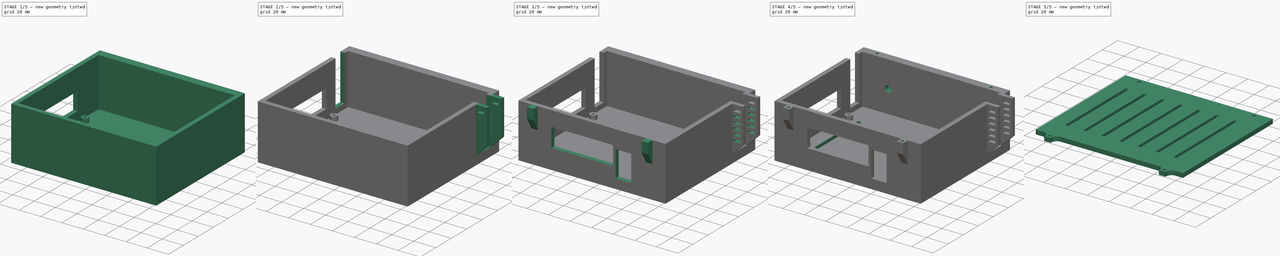
[diagram: build sequence overview — one tinted view per stage of 5, left to right]
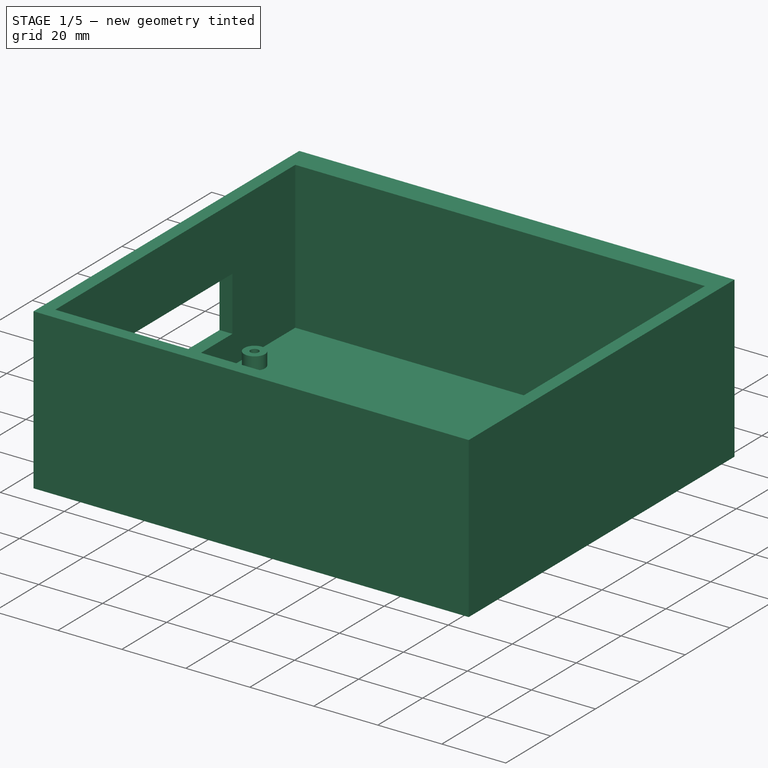
[diagram: stage 1 of 5 — iso view after this stage's code; geometry added in this stage tinted green]
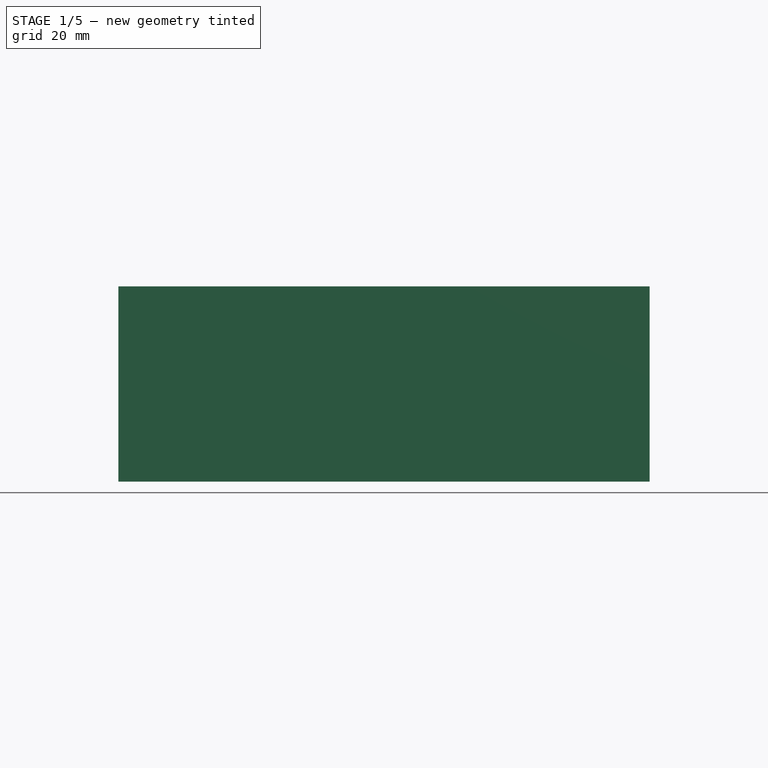
[diagram: stage 1 of 5 — front view after this stage's code; geometry added in this stage tinted green]
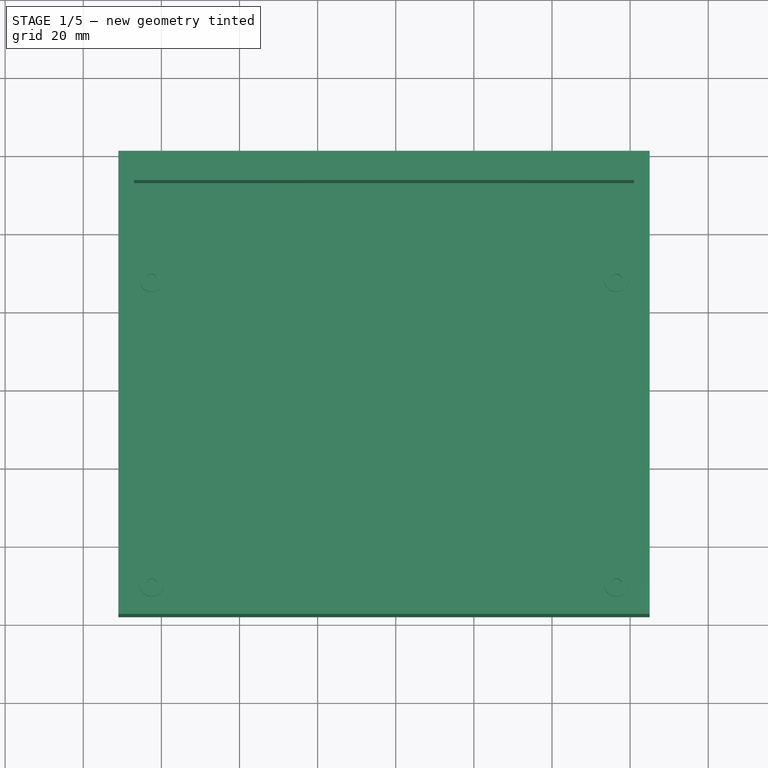
[diagram: stage 1 of 5 — top view after this stage's code; geometry added in this stage tinted green]
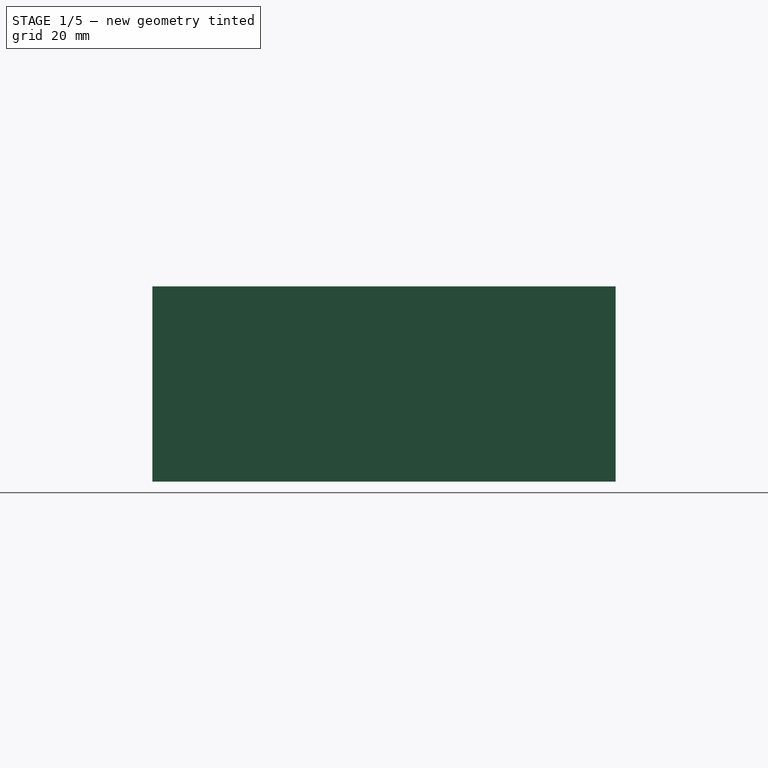
[diagram: stage 1 of 5 — right view after this stage's code; geometry added in this stage tinted green]
FCSTD DOCUMENT  (FreeCAD 0.19R)
Label: second_box
License: All rights reserved
LicenseURL: http://en.wikipedia.org/wiki/All_rights_reserved
objects: Part::Feature×43, Sketcher::SketchObject×17, App::Part×11, PartDesign::Pocket×11, PartDesign::Pad×6, PartDesign::ShapeBinder×3, PartDesign::LinearPattern×3, PartDesign::Chamfer×2, PartDesign::Body×2, PartDesign::Draft×1, PartDesign::Fillet×1
note: 110 computed .brp shape members not serialized (recipe doc carries the construction recipe); baked Part::Feature solids carry a one-line shape summary decoded from their .brp

FEATURE [PartDesign::ShapeBinder] ShapeBinder
  Placement = pos=(0,0,-0.864479) rot=(0,0,1;0rad)
  TraceSupport = false
FEATURE [Part::Feature] Part__Feature783  label="J182"
  shape: bbox 9.1 x 71.4 x 12.4 mm, 745 faces, 51 solids (baked)
FEATURE [Part::Feature] Part__Feature782  label="M5 V1.0 Geometry"
  shape: bbox 127 x 86 x 0.8645 mm, 14 faces (baked)
FEATURE [Part::Feature] Part__Feature784  label="M12"
  shape: bbox 20.34 x 27.91 x 11.54 mm, 787 faces, 79 solids (baked)
FEATURE [Part::Feature] Part__Feature791  label="POWER IN"
  shape: bbox 12.46 x 12.29 x 20.3 mm, 192 faces, 8 solids (baked)
FEATURE [Part::Feature] Part__Feature790  label="FANs"
  shape: bbox 6 x 41.6 x 11 mm, 250 faces, 25 solids (baked)
FEATURE [Part::Feature] Part__Feature786  label="M32"
  shape: bbox 20.34 x 27.91 x 11.54 mm, 787 faces, 79 solids (baked)
FEATURE [Part::Feature] Part__Feature785  label="M22"
  shape: bbox 20.34 x 27.91 x 11.54 mm, 787 faces, 79 solids (baked)
FEATURE [Part::Feature] Part__Feature787  label="M42"
  shape: bbox 20.34 x 27.91 x 11.54 mm, 787 faces, 79 solids (baked)
FEATURE [Part::Feature] Part__Feature794  label="FAN VIN"
  shape: bbox 7.62 x 2.54 x 11.54 mm, 48 faces, 6 solids (baked)
FEATURE [Part::Feature] Part__Feature788  label="M52"
  shape: bbox 20.34 x 27.91 x 11.54 mm, 787 faces, 79 solids (baked)
FEATURE [Part::Feature] Part__Feature792  label="TEMPs"
  shape: bbox 8 x 31.68 x 11 mm, 250 faces, 25 solids (baked)
FEATURE [Part::Feature] Part__Feature789  label="M_STOP"
  shape: bbox 74.94 x 5.842 x 11.54 mm, 420 faces, 60 solids (baked)
FEATURE [Part::Feature] Part__Feature793  label="NeoPixel"
  shape: bbox 7.62 x 2.54 x 11.54 mm, 48 faces, 6 solids (baked)
FEATURE [Part::Feature] Part__Feature795  label="HEAT"
  shape: bbox 55.6 x 24.66 x 21.5 mm, 3313 faces, 16 solids (baked)
FEATURE [Part::Feature] Part__Feature809  label="Component035"
  shape: bbox 7.783 x 0.9 x 5.903 mm, 6 faces (baked)
FEATURE [Part::Feature] Part__Feature797  label="Extruded-358"
  shape: bbox 2.41 x 5.02 x 4 mm, 6 faces (baked)
FEATURE [Part::Feature] Part__Feature799  label="User_Library-MINI_BUSSMAN_FUSE4"
  Placement = pos=(22.467,76.0414,8.5) rot=(0.57735,-0.57735,-0.57735;2.0944rad)
  shape: bbox 4.074 x 11.13 x 16.64 mm, 282 faces, 3 solids (baked)
FEATURE [Part::Feature] Part__Feature805  label="Component031"
  shape: bbox 20.6 x 1.6 x 15.7 mm, 12 faces (baked)
FEATURE [Part::Feature] Part__Feature796  label="Extruded-357"
  shape: bbox 5 x 15 x 3 mm, 6 faces (baked)
FEATURE [Part::Feature] Part__Feature798  label="Extruded-359"
  shape: bbox 2.41 x 5.02 x 4 mm, 6 faces (baked)
FEATURE [Part::Feature] Part__Feature820  label="Component046"
  shape: bbox 20.6 x 1.6 x 15.7 mm, 12 faces (baked)
FEATURE [App::Part] _070069282001  label="9070069282001"
  Group = -> [Part__Feature798]
  Origin = -> Origin827
  Placement = pos=(22.472,66.591,3) rot=(0,0,1;0rad)
FEATURE [Part::Feature] Part__Feature802  label="Component32"
  shape: bbox 18.38 x 11.7 x 13.3 mm, 208 faces, 16 solids (baked)
FEATURE [Part::Feature] Part__Feature823  label="Component049"
  shape: bbox 9 x 12 x 9 mm, 90 faces (baked)
FEATURE [Part::Feature] Part__Feature817  label="Component043"
  shape: bbox 18.38 x 11.7 x 13.3 mm, 208 faces, 16 solids (baked)
FEATURE [Part::Feature] Part__Feature803  label="Component42"
  shape: bbox 9 x 12 x 9 mm, 90 faces (baked)
FEATURE [Part::Feature] Part__Feature800  label="Component12"
  shape: bbox 20.6 x 1.6 x 15.7 mm, 12 faces (baked)
FEATURE [Part::Feature] Part__Feature811  label="Component037"
  shape: bbox 20.32 x 2.7 x 15.2 mm, 168 faces, 2 solids (baked)
FEATURE [Part::Feature] Part__Feature816  label="Component042"
  shape: bbox 20.32 x 2.7 x 15.2 mm, 168 faces, 2 solids (baked)
FEATURE [Part::Feature] Part__Feature806  label="Component032"
  shape: bbox 20.32 x 2.7 x 15.2 mm, 168 faces, 2 solids (baked)
FEATURE [Part::Feature] Part__Feature814  label="Component040"
  shape: bbox 7.783 x 0.9 x 5.903 mm, 6 faces (baked)
FEATURE [Part::Feature] Part__Feature807  label="Component033"
  shape: bbox 18.38 x 11.7 x 13.3 mm, 208 faces, 16 solids (baked)
FEATURE [Part::Feature] Part__Feature801  label="Component22"
  shape: bbox 20.32 x 2.7 x 15.2 mm, 168 faces, 2 solids (baked)
FEATURE [Part::Feature] Part__Feature810  label="Component036"
  shape: bbox 20.6 x 1.6 x 15.7 mm, 12 faces (baked)
FEATURE [Part::Feature] Part__Feature804  label="Component52"
  shape: bbox 7.783 x 0.9 x 5.903 mm, 6 faces (baked)
FEATURE [Part::Feature] Part__Feature822  label="Component048"
  shape: bbox 18.38 x 11.7 x 13.3 mm, 208 faces, 16 solids (baked)
FEATURE [Part::Feature] Part__Feature818  label="Component044"
  shape: bbox 9 x 12 x 9 mm, 90 faces (baked)
FEATURE [Part::Feature] Part__Feature812  label="Component038"
  shape: bbox 18.38 x 11.7 x 13.3 mm, 208 faces, 16 solids (baked)
FEATURE [Part::Feature] Part__Feature815  label="Component041"
  shape: bbox 20.6 x 1.6 x 15.7 mm, 12 faces (baked)
FEATURE [Part::Feature] Part__Feature813  label="Component039"
  shape: bbox 9 x 12 x 9 mm, 90 faces (baked)
FEATURE [App::Part] TMC_22082002  label="TMC 22084"
  Group = -> [Part__Feature810,Part__Feature811,Part__Feature812,Part__Feature813,Part__Feature814]
  Origin = -> Origin832
  Placement = pos=(268.514,85.156,11.2) rot=(0,0.707107,0.707107;3.14159rad)
FEATURE [Part::Feature] Part__Feature821  label="Component047"
  shape: bbox 20.32 x 2.7 x 15.2 mm, 168 faces, 2 solids (baked)
FEATURE [Part::Feature] Part__Feature808  label="Component034"
  shape: bbox 9 x 12 x 9 mm, 90 faces (baked)
FEATURE [App::Part] TMC_22082001  label="TMC 22083"
  Group = -> [Part__Feature805,Part__Feature806,Part__Feature807,Part__Feature808,Part__Feature809]
  Origin = -> Origin831
  Placement = pos=(247.014,85.156,11.2) rot=(0,0.707107,0.707107;3.14159rad)
FEATURE [App::Part] _070110242  label="9070110242"
  Group = -> [Part__Feature796]
  Origin = -> Origin825
  Placement = pos=(22.467,70.581,0) rot=(0,0,1;0rad)
FEATURE [App::Part] TMC_22082  label="TMC 22082"
  Group = -> [Part__Feature800,Part__Feature801,Part__Feature802,Part__Feature803,Part__Feature804]
  Origin = -> Origin830
  Placement = pos=(225.514,85.156,11.2) rot=(0,0.707107,0.707107;3.14159rad)
FEATURE [Part::Feature] Part__Feature819  label="Component045"
  shape: bbox 7.783 x 0.9 x 5.903 mm, 6 faces (baked)
FEATURE [App::Part] TMC_22082003  label="TMC 22085"
  Group = -> [Part__Feature815,Part__Feature816,Part__Feature817,Part__Feature818,Part__Feature819]
  Origin = -> Origin833
  Placement = pos=(290.014,85.156,11.2) rot=(0,0.707107,0.707107;3.14159rad)
FEATURE [App::Part] _070069282  label="9070069282"
  Group = -> [Part__Feature797]
  Origin = -> Origin826
  Placement = pos=(22.472,74.591,3) rot=(0,0,1;0rad)
FEATURE [App::Part] F12
  Group = -> [_070110242,_070069282,_070069282001,Part__Feature799]
  Origin = -> Origin828
  Placement = pos=(273.98,-53.61,0) rot=(0,0,1;0rad)
FEATURE [App::Part] M5_V1_0  label="M5 V1.0"
  Group = -> [Part__Feature782,Part__Feature783,Part__Feature784,Part__Feature785,Part__Feature786,Part__Feature787,Part__Feature788,Part__Feature789,Part__Feature790,Part__Feature791,Part__Feature792,Part__Feature793,Part__Feature794,Part__Feature795,F12]
  Origin = -> Origin829
FEATURE [Part::Feature] Part__Feature824  label="Component050"
  shape: bbox 7.783 x 0.9 x 5.903 mm, 6 faces (baked)
FEATURE [App::Part] TMC_22082004  label="TMC 22086"
  Group = -> [Part__Feature820,Part__Feature821,Part__Feature822,Part__Feature823,Part__Feature824]
  Origin = -> Origin834
  Placement = pos=(311.514,85.156,11.2) rot=(0,0.707107,0.707107;3.14159rad)
FEATURE [App::Part] M5_V1_02  label="M5 V1.02"
  Group = -> [M5_V1_0,TMC_22082,TMC_22082001,TMC_22082002,TMC_22082003,TMC_22082004]
  Origin = -> Origin835
FEATURE [PartDesign::ShapeBinder] ShapeBinder001
  Support = -> [Part__Feature782]
  TraceSupport = false
FEATURE [Sketcher::SketchObject] Sketch
  AttachmentOffset = pos=(0,0,8) rot=(0,0,1;0rad)
  ExternalGeometry = -> [ShapeBinder,ShapeBinder001]
  FullyConstrained = false
  MapMode = 5
  Placement = pos=(0,0,-8.86448) rot=(1,0,0;3.14159rad)
  Support = -> [ShapeBinder]
  sketch-geometry (4):
    g0: LineSegment StartX=189 StartY=-2 StartZ=0 EndX=325 EndY=-2 EndZ=0
    g1: LineSegment StartX=325 StartY=-2 StartZ=0 EndX=325 EndY=-120.6 EndZ=0
    g2: LineSegment StartX=325 StartY=-120.6 StartZ=0 EndX=189 EndY=-120.6 EndZ=0
    g3: LineSegment StartX=189 StartY=-120.6 StartZ=0 EndX=189 EndY=-2 EndZ=0
  constraints (12):
    c: Coincident(g0,g1)
    c: Coincident(g1,g2)
    c: Coincident(g2,g3)
    c: Coincident(g3,g0)
    c: Horizontal(g0)
    c: Horizontal(g2)
    c: Vertical(g1)
    c: Vertical(g3)
    c: DistanceY(g1,g1) = 118.6
    c: Distance(g-6,g3) = 4.5
    c: Distance(g-6,g0) = 4.5
    c: Distance(g-8,g1) = 4.5
FEATURE [PartDesign::Pad] Pad
  Direction = (1,1,1)
  Length = 50
  Length2 = 100
  Placement = pos=(0,0,-0.864479) rot=(0,0,1;0rad)
  Profile = -> Sketch
  Reversed = true
  Type = 0
FEATURE [Sketcher::SketchObject] Sketch001
  ExternalGeometry = -> [Pad]
  FullyConstrained = false
  MapMode = 5
  Placement = pos=(0,0,41.1355) rot=(0,0,1;0rad)
  Support = -> [Pad]
  sketch-geometry (4):
    g0: LineSegment StartX=193 StartY=113.1 StartZ=0 EndX=321 EndY=113.1 EndZ=0
    g1: LineSegment StartX=321 StartY=113.1 StartZ=0 EndX=321 EndY=6 EndZ=0
    g2: LineSegment StartX=321 StartY=6 StartZ=0 EndX=193 EndY=6 EndZ=0
    g3: LineSegment StartX=193 StartY=6 StartZ=0 EndX=193 EndY=113.1 EndZ=0
  constraints (12):
    c: Coincident(g0,g1)
    c: Coincident(g1,g2)
    c: Coincident(g3,g0)
    c: Horizontal(g0)
    c: Horizontal(g2)
    c: Vertical(g1)
    c: Vertical(g3)
    c: Distance(g0,g-5) = 7.5
    c: Coincident(g3,g2)
    c: Distance(g0,g-3) = 4
    c: Distance(g0,g-4) = 4
    c: Distance(g2,g-6) = 4
FEATURE [PartDesign::Pocket] Pocket
  BaseFeature = -> Pad
  Length = 46
  Length2 = 100
  Placement = pos=(0,0,-0.864479) rot=(0,0,1;0rad)
  Profile = -> Sketch001
  Type = 0
FEATURE [Sketcher::SketchObject] Sketch010
  ExternalGeometry = -> [ShapeBinder001]
  FullyConstrained = false
  MapMode = 5
  Placement = pos=(0,0,-4.86448) rot=(0,0,1;0rad)
  Support = -> [Pocket]
  sketch-geometry (4):
    g0: Circle CenterX=197.5 CenterY=88.5 CenterZ=0 NormalX=0 NormalY=0 NormalZ=1 AngleXU=0 Radius=3.25
    g1: Circle CenterX=316.5 CenterY=88.5 CenterZ=0 NormalX=0 NormalY=0 NormalZ=1 AngleXU=0 Radius=3.25
    g2: Circle CenterX=197.5 CenterY=10.5 CenterZ=0 NormalX=0 NormalY=0 NormalZ=1 AngleXU=0 Radius=3.25
    g3: Circle CenterX=316.5 CenterY=10.5 CenterZ=0 NormalX=0 NormalY=0 NormalZ=1 AngleXU=0 Radius=3.25
  constraints (8):
    c: Coincident(g0,g-3)
    c: Coincident(g1,g-4)
    c: Coincident(g2,g-6)
    c: Coincident(g3,g-5)
    c: Radius(g3) = 3.25
    c: Equal(g3,g2)
    c: Equal(g3,g0)
    c: Equal(g3,g1)
FEATURE [PartDesign::Pad] Pad001
  BaseFeature = -> Pocket
  Direction = (1,1,1)
  Length = 4
  Length2 = 100
  Placement = pos=(0,0,-0.864479) rot=(0,0,1;0rad)
  Profile = -> Sketch010
  Type = 0
FEATURE [Sketcher::SketchObject] Sketch011
  ExternalGeometry = -> [Pad001]
  FullyConstrained = false
  MapMode = 5
  Placement = pos=(0,0,-0.864479) rot=(0,0,1;0rad)
  Support = -> [Pad001]
  sketch-geometry (4):
    g0: Circle CenterX=197.5 CenterY=88.5 CenterZ=0 NormalX=0 NormalY=0 NormalZ=1 AngleXU=0 Radius=1.3
    g1: Circle CenterX=316.5 CenterY=88.5 CenterZ=0 NormalX=0 NormalY=0 NormalZ=1 AngleXU=0 Radius=1.3
    g2: Circle CenterX=197.5 CenterY=10.5 CenterZ=0 NormalX=0 NormalY=0 NormalZ=1 AngleXU=0 Radius=1.3
    g3: Circle CenterX=316.5 CenterY=10.5 CenterZ=0 NormalX=0 NormalY=0 NormalZ=1 AngleXU=0 Radius=1.3
  constraints (8):
    c: Coincident(g0,g-3)
    c: Coincident(g1,g-4)
    c: Coincident(g2,g-5)
    c: Coincident(g3,g-6)
    c: Radius(g0) = 1.3
    c: Equal(g0,g1)
    c: Equal(g0,g2)
    c: Equal(g0,g3)
FEATURE [PartDesign::Pocket] Pocket001
  BaseFeature = -> Pad001
  Length = 6
  Length2 = 100
  Placement = pos=(0,0,-0.864479) rot=(0,0,1;0rad)
  Profile = -> Sketch011
  Type = 0
FEATURE [Sketcher::SketchObject] Sketch012
  FullyConstrained = false
  MapMode = 5
  Placement = pos=(193,0,-0.864479) rot=(0.57735,0.57735,0.57735;2.0944rad)
  Support = -> [Pocket001]
  sketch-geometry (4):
    g0: LineSegment StartX=12.7095 StartY=21.9569 StartZ=0 EndX=85.0202 EndY=21.9569 EndZ=0
    g1: LineSegment StartX=85.0202 StartY=21.9569 StartZ=0 EndX=85.0202 EndY=4.98651 EndZ=0
    g2: LineSegment StartX=85.0202 StartY=4.98651 StartZ=0 EndX=12.7095 EndY=4.98651 EndZ=0
    g3: LineSegment StartX=12.7095 StartY=4.98651 StartZ=0 EndX=12.7095 EndY=21.9569 EndZ=0
  constraints (8):
    c: Coincident(g0,g1)
    c: Coincident(g1,g2)
    c: Coincident(g2,g3)
    c: Coincident(g3,g0)
    c: Horizontal(g0)
    c: Horizontal(g2)
    c: Vertical(g1)
    c: Vertical(g3)
FEATURE [PartDesign::Pocket] Pocket002
  BaseFeature = -> Pocket001
  Length = 5
  Length2 = 100
  Placement = pos=(0,0,-0.864479) rot=(0,0,1;0rad)
  Profile = -> Sketch012
  Type = 0
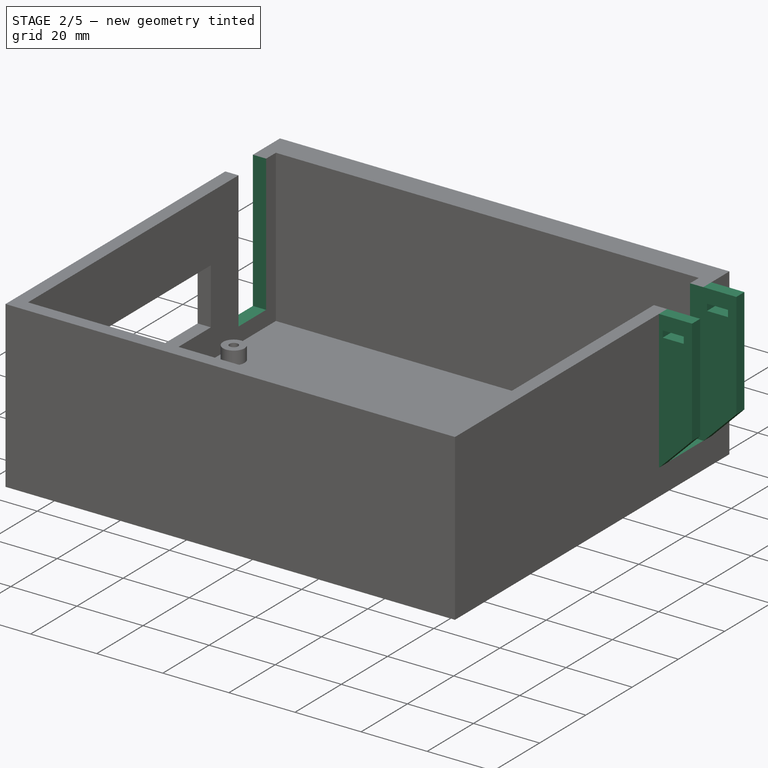
[diagram: stage 2 of 5 — iso view after this stage's code; geometry added in this stage tinted green]
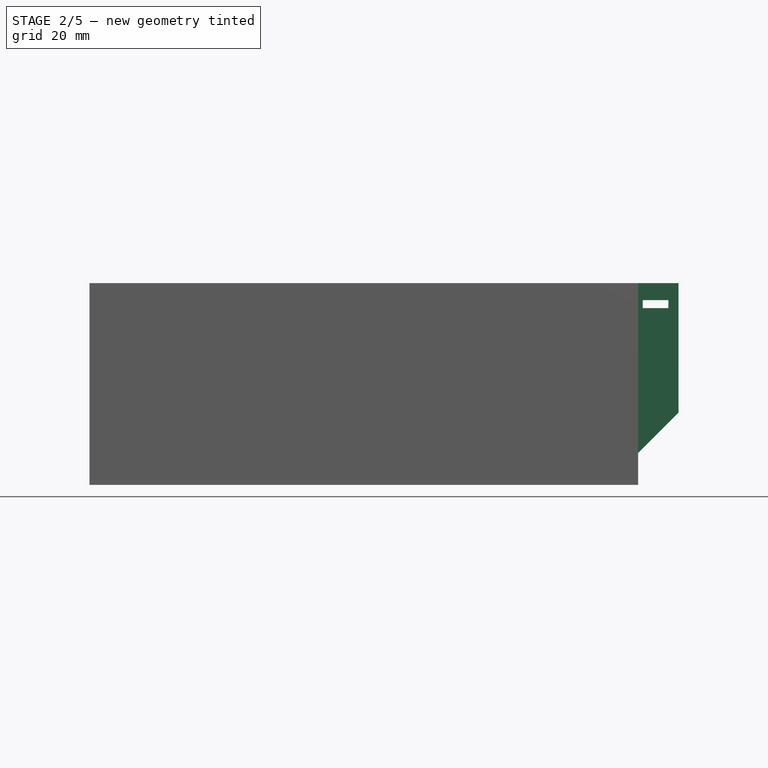
[diagram: stage 2 of 5 — front view after this stage's code; geometry added in this stage tinted green]
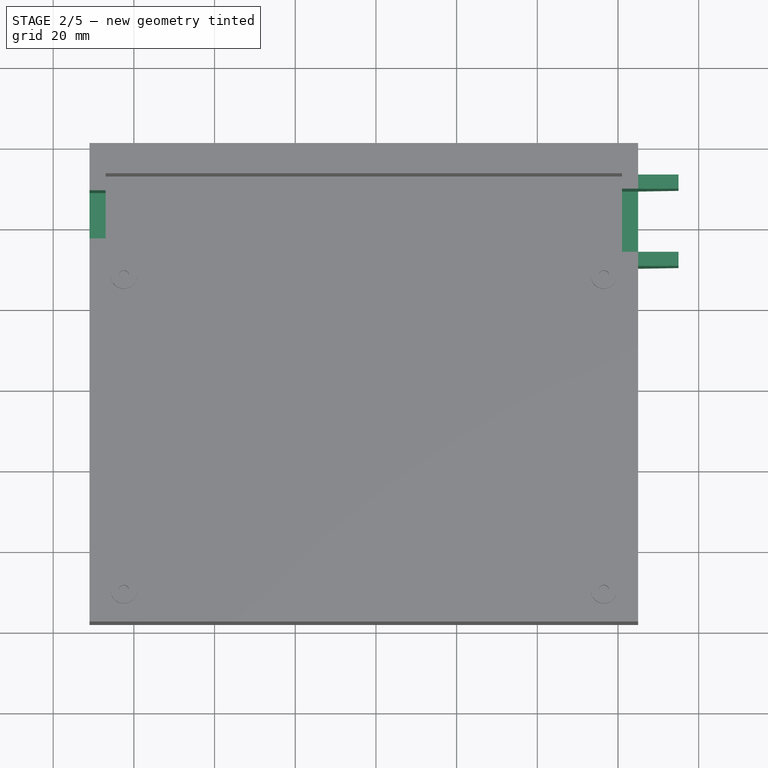
[diagram: stage 2 of 5 — top view after this stage's code; geometry added in this stage tinted green]
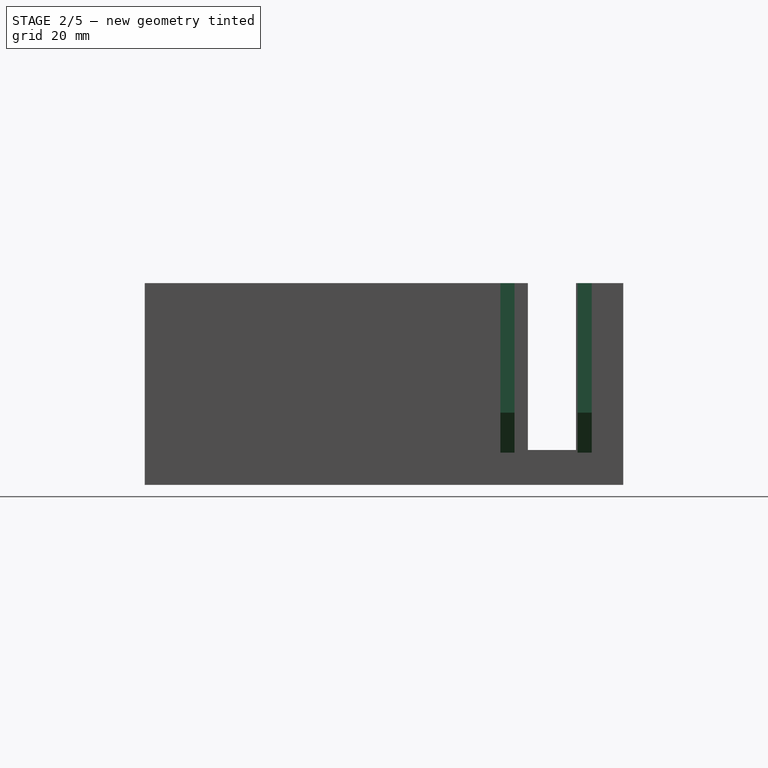
[diagram: stage 2 of 5 — right view after this stage's code; geometry added in this stage tinted green]
FEATURE [Sketcher::SketchObject] Sketch013
  ExternalGeometry = -> [Pocket002]
  FullyConstrained = false
  MapMode = 5
  Placement = pos=(193,0,-0.864479) rot=(0.57735,0.57735,0.57735;2.0944rad)
  Support = -> [Pocket002]
  sketch-geometry (4):
    g0: LineSegment StartX=96.9538 StartY=42 StartZ=0 EndX=108.898 EndY=42 EndZ=0
    g1: LineSegment StartX=108.898 StartY=42 StartZ=0 EndX=108.898 EndY=0.6398 EndZ=0
    g2: LineSegment StartX=108.898 StartY=0.6398 StartZ=0 EndX=96.9538 EndY=0.6398 EndZ=0
    g3: LineSegment StartX=96.9538 StartY=0.6398 StartZ=0 EndX=96.9538 EndY=42 EndZ=0
  constraints (9):
    c: Coincident(g0,g1)
    c: Coincident(g1,g2)
    c: Coincident(g2,g3)
    c: Coincident(g3,g0)
    c: Horizontal(g0)
    c: Horizontal(g2)
    c: Vertical(g1)
    c: Vertical(g3)
    c: PointOnObject(g0,g-3)
FEATURE [PartDesign::Pocket] Pocket003
  BaseFeature = -> Pocket002
  Length = 5
  Length2 = 100
  Placement = pos=(0,0,-0.864479) rot=(0,0,1;0rad)
  Profile = -> Sketch013
  Type = 0
FEATURE [Sketcher::SketchObject] Sketch014
  ExternalGeometry = -> [Pocket003]
  FullyConstrained = false
  MapMode = 5
  Placement = pos=(321,0,-0.864479) rot=(0.57735,-0.57735,-0.57735;2.0944rad)
  Support = -> [Pocket003]
  sketch-geometry (4):
    g0: LineSegment StartX=-109.301 StartY=42 StartZ=0 EndX=-93.6581 EndY=42 EndZ=0
    g1: LineSegment StartX=-93.6581 StartY=42 StartZ=0 EndX=-93.6581 EndY=0 EndZ=0
    g2: LineSegment StartX=-93.6581 StartY=0 StartZ=0 EndX=-109.301 EndY=0 EndZ=0
    g3: LineSegment StartX=-109.301 StartY=0 StartZ=0 EndX=-109.301 EndY=42 EndZ=0
  constraints (10):
    c: Coincident(g0,g1)
    c: Coincident(g1,g2)
    c: Coincident(g2,g3)
    c: Coincident(g3,g0)
    c: Horizontal(g0)
    c: Horizontal(g2)
    c: Vertical(g1)
    c: Vertical(g3)
    c: PointOnObject(g0,g-3)
    c: PointOnObject(g1,g-1)
FEATURE [PartDesign::Pocket] Pocket004
  BaseFeature = -> Pocket003
  Length = 5
  Length2 = 100
  Placement = pos=(0,0,-0.864479) rot=(0,0,1;0rad)
  Profile = -> Sketch014
  Type = 0
FEATURE [Sketcher::SketchObject] Sketch015
  ExternalGeometry = -> [Pocket004]
  FullyConstrained = false
  MapMode = 5
  Placement = pos=(325,0,-0.864479) rot=(0.57735,0.57735,0.57735;2.0944rad)
  Support = -> [Pocket004]
  sketch-geometry (8):
    g0: LineSegment StartX=93.6581 StartY=42 StartZ=0 EndX=90.1581 EndY=42 EndZ=0
    g1: LineSegment StartX=90.1581 StartY=42 StartZ=0 EndX=90.1581 EndY=0 EndZ=0
    g2: LineSegment StartX=90.1581 StartY=0 StartZ=0 EndX=93.6581 EndY=0 EndZ=0
    g3: LineSegment StartX=93.6581 StartY=0 StartZ=0 EndX=93.6581 EndY=42 EndZ=0
    g4: LineSegment StartX=109.301 StartY=42 StartZ=0 EndX=112.801 EndY=42 EndZ=0
    g5: LineSegment StartX=112.801 StartY=42 StartZ=0 EndX=112.801 EndY=0 EndZ=0
    g6: LineSegment StartX=112.801 StartY=0 StartZ=0 EndX=109.301 EndY=0 EndZ=0
    g7: LineSegment StartX=109.301 StartY=0 StartZ=0 EndX=109.301 EndY=42 EndZ=0
  constraints (22):
    c: Coincident(g0,g1)
    c: Coincident(g1,g2)
    c: Coincident(g2,g3)
    c: Coincident(g3,g0)
    c: Horizontal(g0)
    c: Horizontal(g2)
    c: Vertical(g1)
    c: Vertical(g3)
    c: Coincident(g0,g-3)
    c: Coincident(g4,g5)
    c: Coincident(g5,g6)
    c: Coincident(g6,g7)
    c: Coincident(g7,g4)
    c: Horizontal(g4)
    c: Horizontal(g6)
    c: Vertical(g5)
    c: Vertical(g7)
    c: Coincident(g4,g-4)
    c: PointOnObject(g2,g-5)
    c: PointOnObject(g6,g-5)
    c: Equal(g2,g6)
    c: DistanceX(g4,g4) = 3.5
FEATURE [PartDesign::Pad] Pad002
  BaseFeature = -> Pocket004
  Direction = (1,1,1)
  Length = 10
  Length2 = 100
  Placement = pos=(0,0,-0.864479) rot=(0,0,1;0rad)
  Profile = -> Sketch015
  Type = 0
FEATURE [PartDesign::Chamfer] Chamfer
  Angle = 45
  Base = -> Pad002 [Edge62,Edge56]
  BaseFeature = -> Pad002
  ChamferType = 0
  FlipDirection = false
  Placement = pos=(0,0,-0.864479) rot=(0,0,1;0rad)
  Size = 9.9
  Size2 = 1
  SupportTransform = false
FEATURE [Sketcher::SketchObject] Sketch016
  FullyConstrained = false
  MapMode = 5
  Placement = pos=(0,112.801,-0.864479) rot=(0,0.707107,0.707107;3.14159rad)
  Support = -> [Chamfer]
  sketch-geometry (4):
    g0: LineSegment StartX=-332.486 StartY=37.7916 StartZ=0 EndX=-326.139 EndY=37.7916 EndZ=0
    g1: LineSegment StartX=-326.139 StartY=37.7916 StartZ=0 EndX=-326.139 EndY=35.8082 EndZ=0
    g2: LineSegment StartX=-326.139 StartY=35.8082 StartZ=0 EndX=-332.486 EndY=35.8082 EndZ=0
    g3: LineSegment StartX=-332.486 StartY=35.8082 StartZ=0 EndX=-332.486 EndY=37.7916 EndZ=0
  constraints (8):
    c: Coincident(g0,g1)
    c: Coincident(g1,g2)
    c: Coincident(g2,g3)
    c: Coincident(g3,g0)
    c: Horizontal(g0)
    c: Horizontal(g2)
    c: Vertical(g1)
    c: Vertical(g3)
FEATURE [PartDesign::Pocket] Pocket005
  BaseFeature = -> Chamfer
  Length = 5
  Length2 = 100
  Placement = pos=(0,0,-0.864479) rot=(0,0,1;0rad)
  Profile = -> Sketch016
  Type = 1
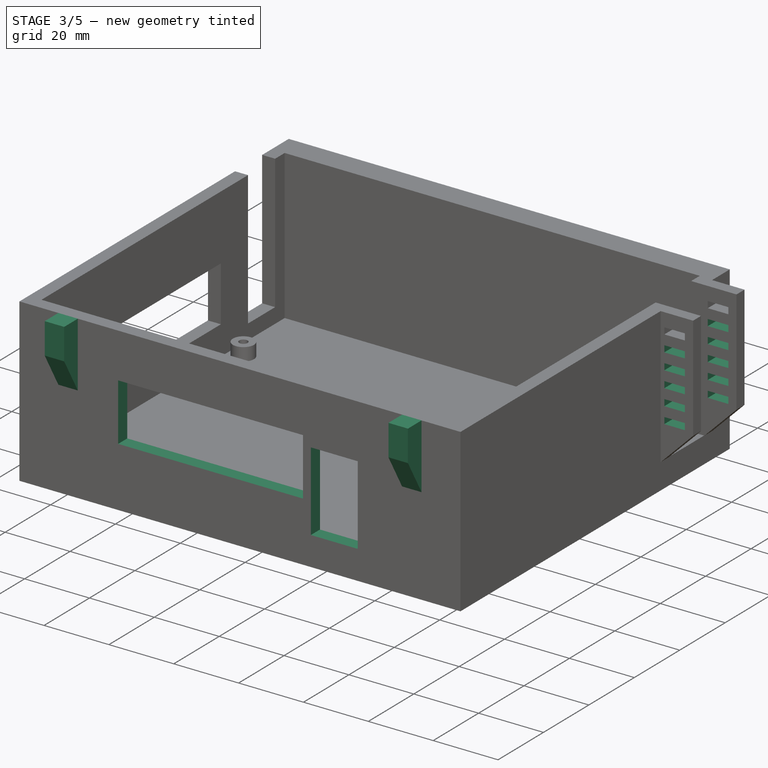
[diagram: stage 3 of 5 — iso view after this stage's code; geometry added in this stage tinted green]
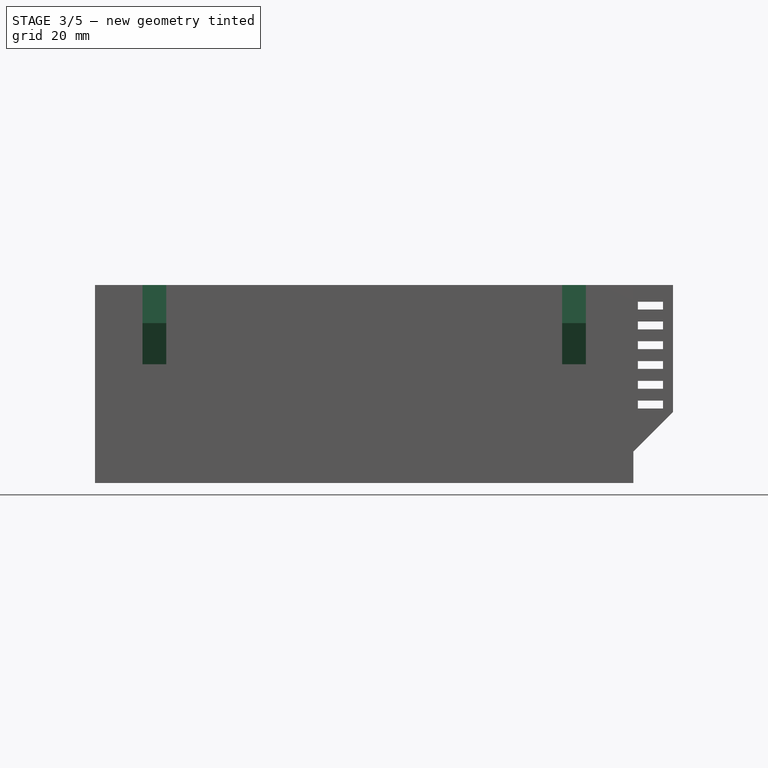
[diagram: stage 3 of 5 — front view after this stage's code; geometry added in this stage tinted green]
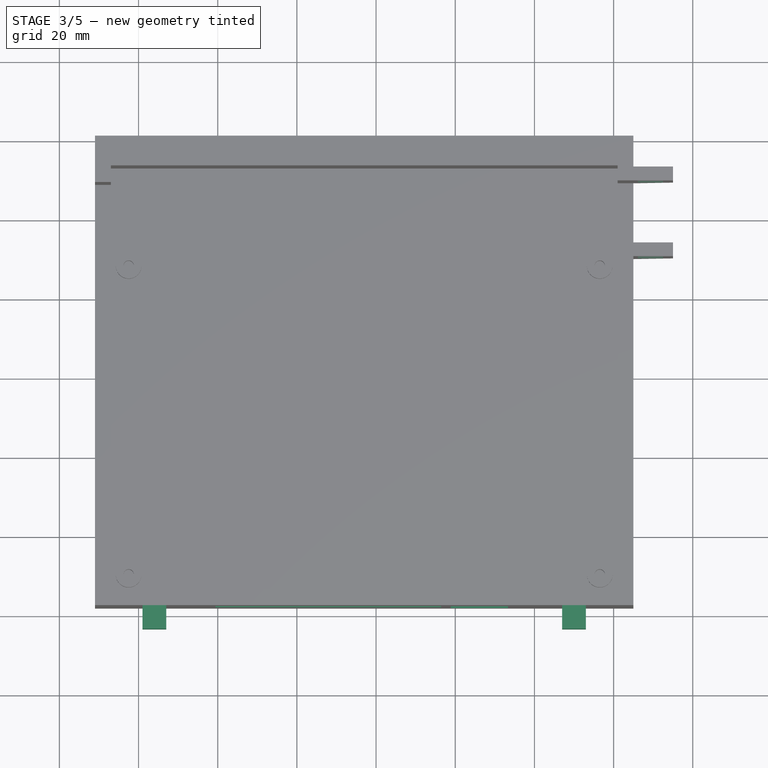
[diagram: stage 3 of 5 — top view after this stage's code; geometry added in this stage tinted green]
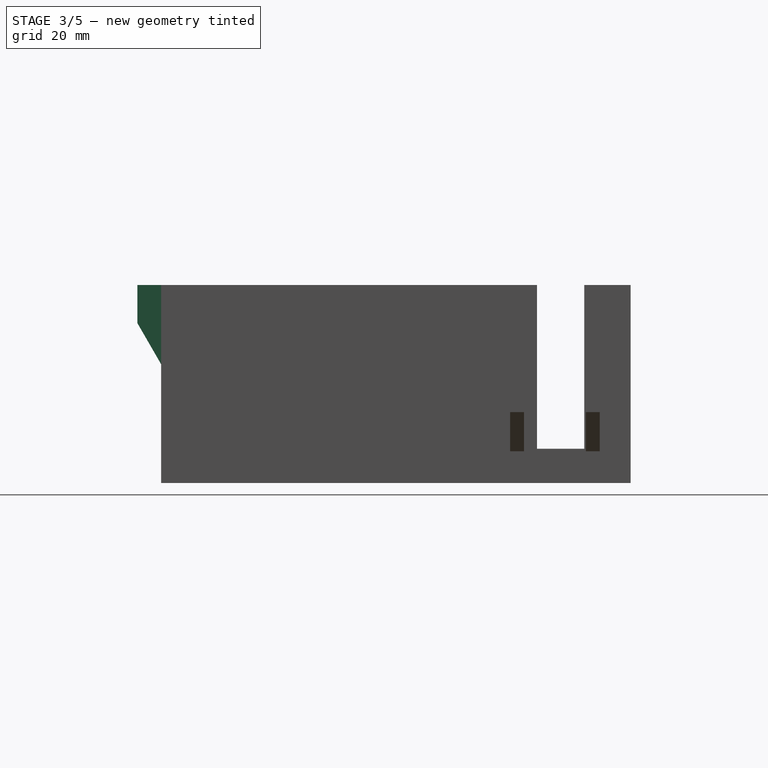
[diagram: stage 3 of 5 — right view after this stage's code; geometry added in this stage tinted green]
FEATURE [PartDesign::LinearPattern] LinearPattern
  BaseFeature = -> Pocket005
  Direction = -> Sketch016 [V_Axis]
  Length = 25
  Occurrences = 6
  Originals = -> [Pocket005]
  Placement = pos=(0,0,-0.864479) rot=(0,0,1;0rad)
  Reversed = true
FEATURE [Sketcher::SketchObject] Sketch017
  FullyConstrained = false
  MapMode = 5
  Placement = pos=(0,6,-0.864479) rot=(0,0.707107,0.707107;3.14159rad)
  Support = -> [LinearPattern]
  sketch-geometry (8):
    g0: LineSegment StartX=-276.431 StartY=28.1294 StartZ=0 EndX=-219.447 EndY=28.1294 EndZ=0
    g1: LineSegment StartX=-219.447 StartY=28.1294 StartZ=0 EndX=-219.447 EndY=10.4327 EndZ=0
    g2: LineSegment StartX=-219.447 StartY=10.4327 StartZ=0 EndX=-276.431 EndY=10.4327 EndZ=0
    g3: LineSegment StartX=-276.431 StartY=10.4327 StartZ=0 EndX=-276.431 EndY=28.1294 EndZ=0
    g4: LineSegment StartX=-293.309 StartY=25.358 StartZ=0 EndX=-278.87 EndY=25.358 EndZ=0
    g5: LineSegment StartX=-278.87 StartY=25.358 StartZ=0 EndX=-278.87 EndY=0.926507 EndZ=0
    g6: LineSegment StartX=-278.87 StartY=0.926507 StartZ=0 EndX=-293.309 EndY=0.926507 EndZ=0
    g7: LineSegment StartX=-293.309 StartY=0.926507 StartZ=0 EndX=-293.309 EndY=25.358 EndZ=0
  constraints (16):
    c: Coincident(g0,g1)
    c: Coincident(g1,g2)
    c: Coincident(g2,g3)
    c: Coincident(g3,g0)
    c: Horizontal(g0)
    c: Horizontal(g2)
    c: Vertical(g1)
    c: Vertical(g3)
    c: Coincident(g4,g5)
    c: Coincident(g5,g6)
    c: Coincident(g6,g7)
    c: Coincident(g7,g4)
    c: Horizontal(g4)
    c: Horizontal(g6)
    c: Vertical(g5)
    c: Vertical(g7)
FEATURE [PartDesign::Pocket] Pocket006
  BaseFeature = -> LinearPattern
  Length = 5
  Length2 = 100
  Placement = pos=(0,0,-0.864479) rot=(0,0,1;0rad)
  Profile = -> Sketch017
  Type = 0
FEATURE [Sketcher::SketchObject] Sketch008
  ExternalGeometry = -> [Pocket006]
  FullyConstrained = false
  MapMode = 5
  Placement = pos=(0,0,41.1355) rot=(0,0,1;0rad)
  Support = -> [Pocket006]
  sketch-geometry (9):
    g0: LineSegment StartX=201 StartY=2 StartZ=0 EndX=207 EndY=2 EndZ=0
    g1: LineSegment StartX=207 StartY=2 StartZ=0 EndX=207 EndY=-4 EndZ=0
    g2: LineSegment StartX=207 StartY=-4 StartZ=0 EndX=201 EndY=-4 EndZ=0
    g3: LineSegment StartX=201 StartY=-4 StartZ=0 EndX=201 EndY=2 EndZ=0
    g4: LineSegment StartX=307 StartY=2 StartZ=0 EndX=313 EndY=2 EndZ=0
    g5: LineSegment StartX=313 StartY=2 StartZ=0 EndX=313 EndY=-4 EndZ=0
    g6: LineSegment StartX=313 StartY=-4 StartZ=0 EndX=307 EndY=-4 EndZ=0
    g7: LineSegment StartX=307 StartY=-4 StartZ=0 EndX=307 EndY=2 EndZ=0
    g8: LineSegment StartX=257 StartY=6 StartZ=0 EndX=257 EndY=-21.9711 EndZ=0
  constraints (25):
    c: Coincident(g0,g1)
    c: Coincident(g1,g2)
    c: Coincident(g2,g3)
    c: Coincident(g3,g0)
    c: Horizontal(g0)
    c: Horizontal(g2)
    c: Vertical(g1)
    c: Vertical(g3)
    c: Coincident(g4,g5)
    c: Coincident(g5,g6)
    c: Coincident(g6,g7)
    c: Coincident(g7,g4)
    c: Horizontal(g4)
    c: Horizontal(g6)
    c: Vertical(g5)
    c: Vertical(g7)
    c: Equal(g2,g6)
    c: Symmetric(g1,g6,g8)
    c: Distance(g1,g6) = 100
    c: Equal(g3,g5)
    c: Distance(g3) = 6
    c: Equal(g2,g3)
    c: PointOnObject(g8,g-3)
    c: PointOnObject(g0,g-4)
    c: Symmetric(g-3,g-3,g8)
FEATURE [PartDesign::Pad] Pad003
  BaseFeature = -> Pocket006
  Direction = (1,1,1)
  Length = 20
  Length2 = 100
  Placement = pos=(0,0,-0.864479) rot=(0,0,1;0rad)
  Profile = -> Sketch008
  Reversed = true
  Type = 0
FEATURE [PartDesign::Draft] Draft
  Angle = 60
  Base = -> Pad003 [Face80,Face83]
  BaseFeature = -> Pad003
  Placement = pos=(0,0,-0.864479) rot=(0,0,1;0rad)
  Reversed = true
  SupportTransform = false
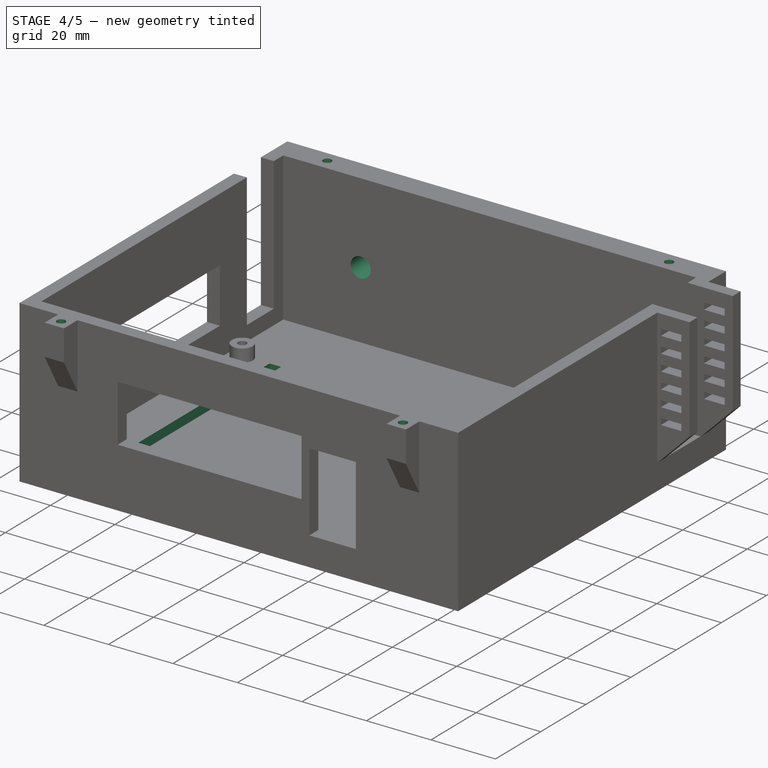
[diagram: stage 4 of 5 — iso view after this stage's code; geometry added in this stage tinted green]
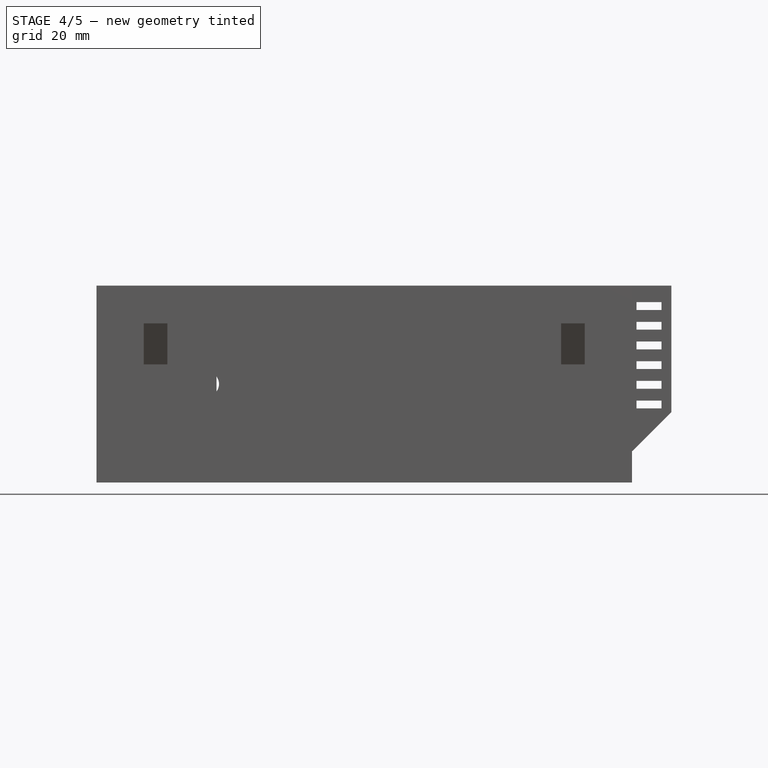
[diagram: stage 4 of 5 — front view after this stage's code; geometry added in this stage tinted green]
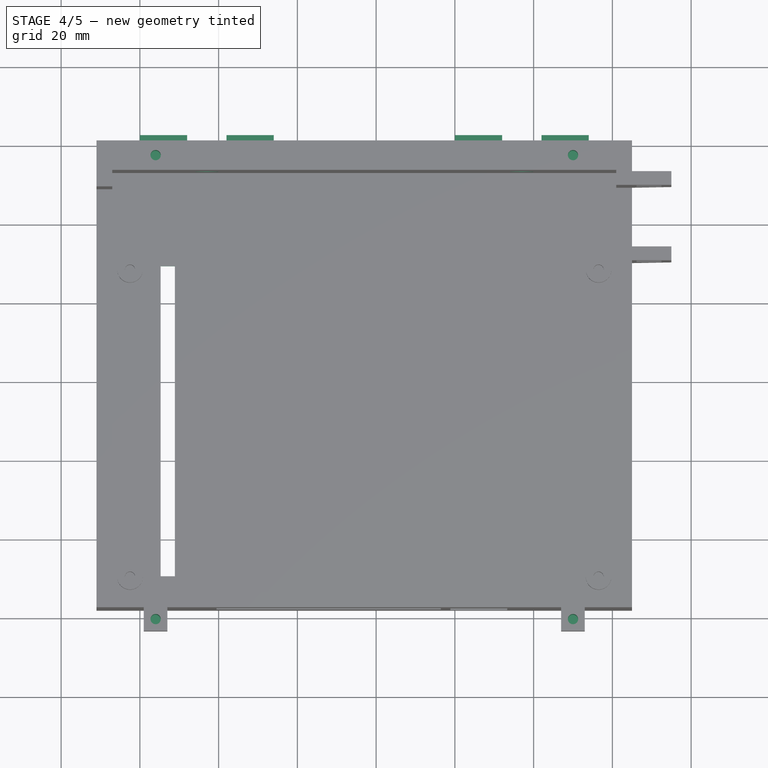
[diagram: stage 4 of 5 — top view after this stage's code; geometry added in this stage tinted green]
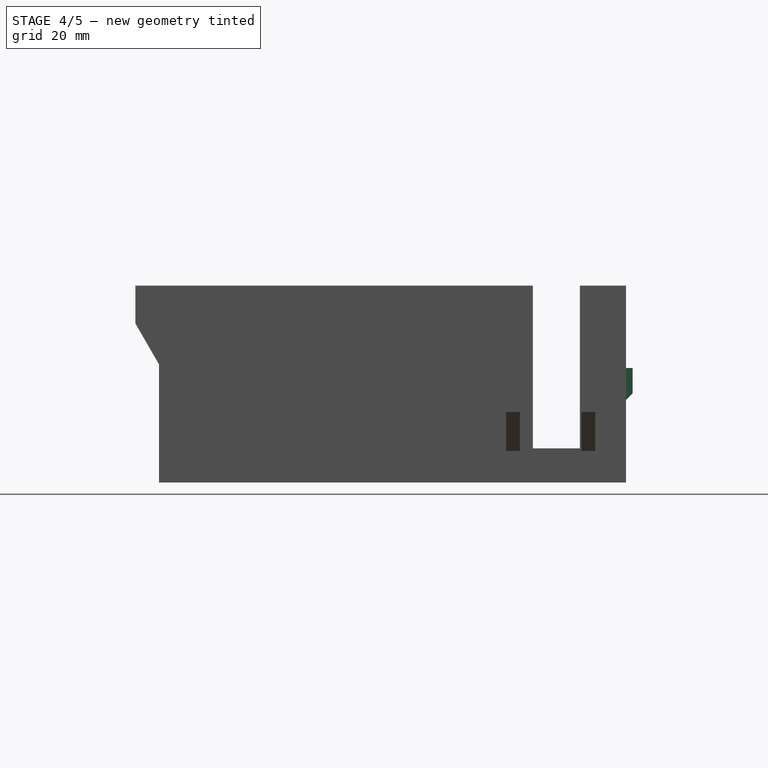
[diagram: stage 4 of 5 — right view after this stage's code; geometry added in this stage tinted green]
FEATURE [Sketcher::SketchObject] Sketch009
  ExternalGeometry = -> [Draft]
  FullyConstrained = false
  MapMode = 5
  Placement = pos=(0,0,41.1355) rot=(0,0,1;0rad)
  Support = -> [Draft]
  sketch-geometry (9):
    g0: LineSegment StartX=204 StartY=-1 StartZ=0 EndX=310 EndY=-1 EndZ=0
    g1: LineSegment StartX=310 StartY=-1 StartZ=0 EndX=310 EndY=116.85 EndZ=0
    g2: LineSegment StartX=310 StartY=116.85 StartZ=0 EndX=204 EndY=116.85 EndZ=0
    g3: LineSegment StartX=204 StartY=116.85 StartZ=0 EndX=204 EndY=-1 EndZ=0
    g4: Circle CenterX=204 CenterY=116.85 CenterZ=0 NormalX=0 NormalY=0 NormalZ=1 AngleXU=0 Radius=1.3
    g5: Circle CenterX=310 CenterY=116.85 CenterZ=0 NormalX=0 NormalY=0 NormalZ=1 AngleXU=0 Radius=1.3
    g6: Circle CenterX=204 CenterY=-1 CenterZ=0 NormalX=0 NormalY=0 NormalZ=1 AngleXU=0 Radius=1.3
    g7: Circle CenterX=310 CenterY=-1 CenterZ=0 NormalX=0 NormalY=0 NormalZ=1 AngleXU=0 Radius=1.3
    g8: LineSegment StartX=257 StartY=120.6 StartZ=0 EndX=257 EndY=113.1 EndZ=0
  constraints (19):
    c: Coincident(g0,g1)
    c: Coincident(g1,g2)
    c: Coincident(g2,g3)
    c: Coincident(g3,g0)
    c: Coincident(g4,g2)
    c: Coincident(g5,g1)
    c: Coincident(g6,g0)
    c: Coincident(g7,g0)
    c: Radius(g4) = 1.3
    c: Equal(g4,g5)
    c: Equal(g4,g6)
    c: Equal(g4,g7)
    c: Symmetric(g-4,g-4,g0)
    c: Symmetric(g-5,g-4,g3)
    c: Symmetric(g-8,g-8,g1)
    c: Symmetric(g8,g8,g2)
    c: Symmetric(g-10,g-10,g8)
    c: PointOnObject(g8,g-9)
    c: PointOnObject(g8,g-10)
FEATURE [PartDesign::Pocket] Pocket007
  BaseFeature = -> Draft
  Length = 10
  Length2 = 100
  Placement = pos=(0,0,-0.864479) rot=(0,0,1;0rad)
  Profile = -> Sketch009
  Type = 0
FEATURE [Sketcher::SketchObject] Sketch018
  ExternalGeometry = -> [Pocket007]
  FullyConstrained = false
  MapMode = 5
  Placement = pos=(0,120.6,-0.864479) rot=(0,0.707107,0.707107;3.14159rad)
  Support = -> [Pocket007]
  sketch-geometry (4):
    g0: LineSegment StartX=-325 StartY=17 StartZ=0 EndX=-189 EndY=17 EndZ=0
    g1: Circle CenterX=-297 CenterY=17 CenterZ=0 NormalX=0 NormalY=0 NormalZ=1 AngleXU=0 Radius=3.1
    g2: Circle CenterX=-217 CenterY=17 CenterZ=0 NormalX=0 NormalY=0 NormalZ=1 AngleXU=0 Radius=3.1
    g3: LineSegment StartX=-257 StartY=42 StartZ=0 EndX=-257 EndY=-8 EndZ=0
  constraints (11):
    c: PointOnObject(g0,g-5)
    c: PointOnObject(g0,g-6)
    c: Symmetric(g-5,g-5,g0)
    c: PointOnObject(g1,g0)
    c: PointOnObject(g3,g-3)
    c: PointOnObject(g3,g-4)
    c: Symmetric(g-5,g-6,g3)
    c: Symmetric(g1,g2,g3)
    c: Distance(g1,g2) = 80
    c: Radius(g1) = 3.1
    c: Equal(g1,g2)
FEATURE [PartDesign::Pocket] Pocket008
  BaseFeature = -> Pocket007
  Length = 9
  Length2 = 100
  Placement = pos=(0,0,-0.864479) rot=(0,0,1;0rad)
  Profile = -> Sketch018
  Type = 0
FEATURE [Sketcher::SketchObject] Sketch019
  ExternalGeometry = -> [Pocket008]
  FullyConstrained = false
  MapMode = 5
  Placement = pos=(0,120.6,-0.864479) rot=(0,0.707107,0.707107;3.14159rad)
  Support = -> [Pocket008]
  sketch-geometry (21):
    g0: LineSegment StartX=-297 StartY=17 StartZ=0 EndX=-217 EndY=17 EndZ=0
    g1: LineSegment StartX=-292 StartY=21.05 StartZ=0 EndX=-280 EndY=21.05 EndZ=0
    g2: LineSegment StartX=-280 StartY=21.05 StartZ=0 EndX=-280 EndY=12.95 EndZ=0
    g3: LineSegment StartX=-280 StartY=12.95 StartZ=0 EndX=-292 EndY=12.95 EndZ=0
    g4: LineSegment StartX=-292 StartY=12.95 StartZ=0 EndX=-292 EndY=21.05 EndZ=0
    g5: LineSegment StartX=-297 StartY=17 StartZ=0 EndX=-297 EndY=0 EndZ=0
    g6: LineSegment StartX=-217 StartY=17 StartZ=0 EndX=-217 EndY=0 EndZ=0
    g7: LineSegment StartX=-314 StartY=21.05 StartZ=0 EndX=-302 EndY=21.05 EndZ=0
    g8: LineSegment StartX=-302 StartY=21.05 StartZ=0 EndX=-302 EndY=12.95 EndZ=0
    g9: LineSegment StartX=-302 StartY=12.95 StartZ=0 EndX=-314 EndY=12.95 EndZ=0
    g10: LineSegment StartX=-314 StartY=12.95 StartZ=0 EndX=-314 EndY=21.05 EndZ=0
    g11: LineSegment StartX=-234 StartY=21.05 StartZ=0 EndX=-222 EndY=21.05 EndZ=0
    g12: LineSegment StartX=-222 StartY=21.05 StartZ=0 EndX=-222 EndY=12.95 EndZ=0
    g13: LineSegment StartX=-222 StartY=12.95 StartZ=0 EndX=-234 EndY=12.95 EndZ=0
    g14: LineSegment StartX=-234 StartY=12.95 StartZ=0 EndX=-234 EndY=21.05 EndZ=0
    g15: LineSegment StartX=-212 StartY=21.05 StartZ=0 EndX=-200 EndY=21.05 EndZ=0
    g16: LineSegment StartX=-200 StartY=21.05 StartZ=0 EndX=-200 EndY=12.95 EndZ=0
    g17: LineSegment StartX=-200 StartY=12.95 StartZ=0 EndX=-212 EndY=12.95 EndZ=0
    g18: LineSegment StartX=-212 StartY=12.95 StartZ=0 EndX=-212 EndY=21.05 EndZ=0
    g19: LineSegment StartX=-302 StartY=21.05 StartZ=0 EndX=-292 EndY=21.05 EndZ=0
    g20: LineSegment StartX=-222 StartY=21.05 StartZ=0 EndX=-212 EndY=21.05 EndZ=0
  constraints (56):
    c: Coincident(g0,g-3)
    c: Coincident(g0,g-4)
    c: Coincident(g1,g2)
    c: Coincident(g2,g3)
    c: Coincident(g3,g4)
    c: Coincident(g4,g1)
    c: Horizontal(g1)
    c: Horizontal(g3)
    c: Vertical(g2)
    c: Coincident(g5,g0)
    c: PointOnObject(g5,g-1)
    c: Vertical(g5)
    c: Coincident(g6,g0)
    c: PointOnObject(g6,g-1)
    c: Vertical(g6)
    c: Coincident(g7,g8)
    c: Coincident(g8,g9)
    c: Coincident(g9,g10)
    c: Coincident(g10,g7)
    c: Horizontal(g7)
    c: Horizontal(g9)
    c: Vertical(g8)
    c: Vertical(g10)
    c: Coincident(g11,g12)
    c: Coincident(g12,g13)
    c: Coincident(g13,g14)
    c: Coincident(g14,g11)
    c: Horizontal(g11)
    c: Horizontal(g13)
    c: Vertical(g14)
    c: Coincident(g15,g16)
    c: Coincident(g16,g17)
    c: Coincident(g17,g18)
    c: Coincident(g18,g15)
    c: Horizontal(g15)
    c: Horizontal(g17)
    c: Vertical(g16)
    c: Vertical(g18)
    c: Equal(g9,g3)
    c: Equal(g3,g13)
    c: Equal(g13,g17)
    c: DistanceX(g9,g9) = 12
    c: Equal(g8,g2)
    c: Equal(g2,g12)
    c: Equal(g12,g16)
    c: DistanceY(g10,g10) = 8.1
    c: Symmetric(g8,g3,g5)
    c: Symmetric(g12,g17,g6)
    c: Symmetric(g1,g3,g0)
    c: Symmetric(g11,g12,g0)
    c: Coincident(g19,g7)
    c: Coincident(g19,g1)
    c: Coincident(g20,g11)
    c: Coincident(g20,g15)
    c: Equal(g19,g20)
    c: DistanceX(g19,g19) = 10
FEATURE [PartDesign::Pad] Pad004
  BaseFeature = -> Pocket008
  Direction = (1,1,1)
  Length = 1.7
  Length2 = 100
  Placement = pos=(0,0,-0.864479) rot=(0,0,1;0rad)
  Profile = -> Sketch019
  Type = 0
FEATURE [PartDesign::Chamfer] Chamfer001
  Angle = 45
  Base = -> Pad004 [Edge219,Edge201,Edge211,Edge227]
  BaseFeature = -> Pad004
  ChamferType = 0
  FlipDirection = false
  Placement = pos=(0,0,-0.864479) rot=(0,0,1;0rad)
  Size = 1.69
  Size2 = 1
  SupportTransform = false
FEATURE [Sketcher::SketchObject] Sketch020
  FullyConstrained = false
  MapMode = 5
  Placement = pos=(0,0,-4.86448) rot=(0,0,1;0rad)
  Support = -> [Chamfer001]
  sketch-geometry (4):
    g0: LineSegment StartX=205.283 StartY=89.4825 StartZ=0 EndX=208.889 EndY=89.4825 EndZ=0
    g1: LineSegment StartX=208.889 StartY=89.4825 StartZ=0 EndX=208.889 EndY=10.6988 EndZ=0
    g2: LineSegment StartX=208.889 StartY=10.6988 StartZ=0 EndX=205.283 EndY=10.6988 EndZ=0
    g3: LineSegment StartX=205.283 StartY=10.6988 StartZ=0 EndX=205.283 EndY=89.4825 EndZ=0
  constraints (8):
    c: Coincident(g0,g1)
    c: Coincident(g1,g2)
    c: Coincident(g2,g3)
    c: Coincident(g3,g0)
    c: Horizontal(g0)
    c: Horizontal(g2)
    c: Vertical(g1)
    c: Vertical(g3)
FEATURE [PartDesign::Pocket] Pocket009
  BaseFeature = -> Chamfer001
  Length = 5
  Length2 = 100
  Placement = pos=(0,0,-0.864479) rot=(0,0,1;0rad)
  Profile = -> Sketch020
  Type = 0
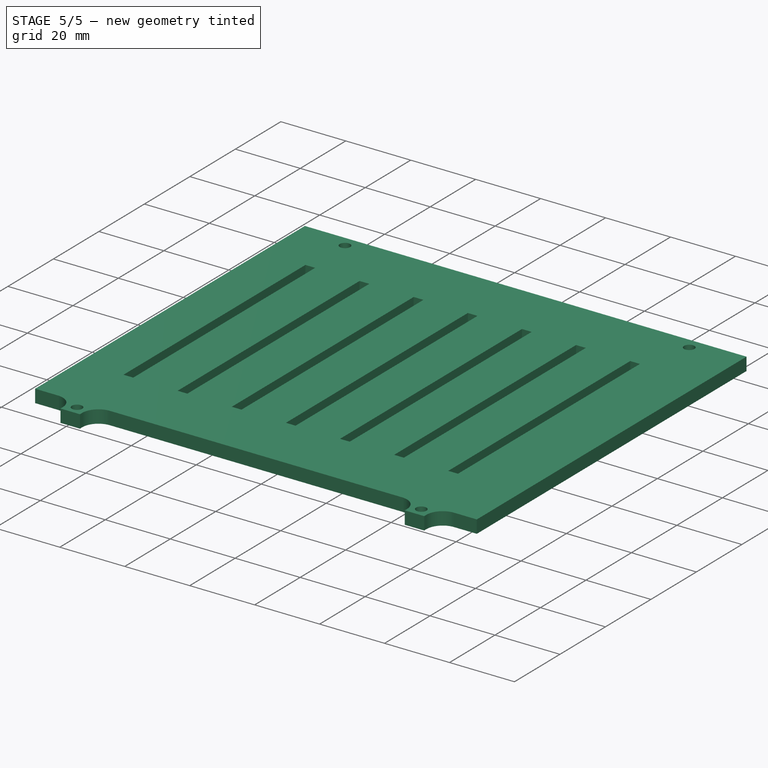
[diagram: stage 5 of 5 — iso view after this stage's code; geometry added in this stage tinted green]
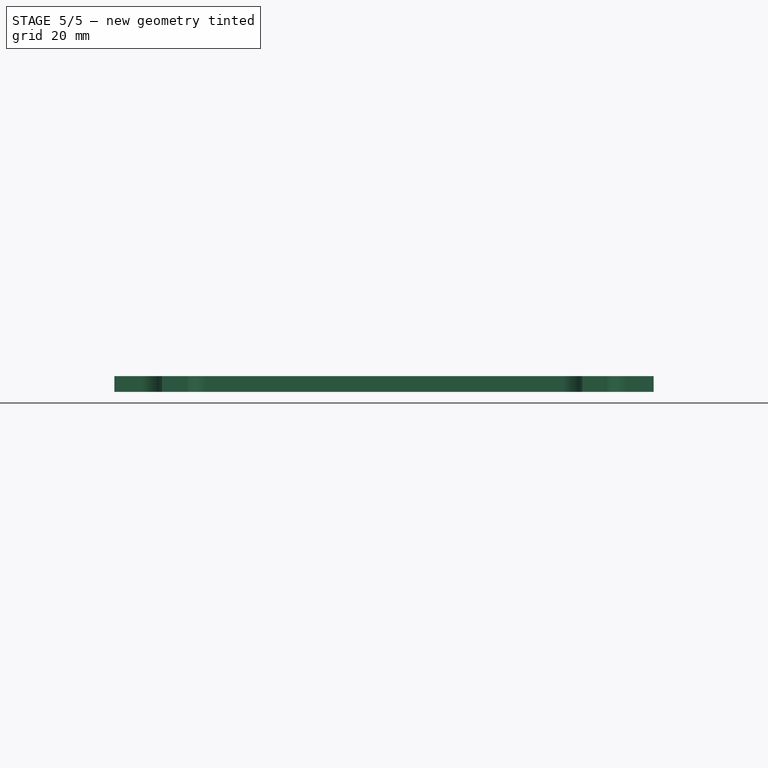
[diagram: stage 5 of 5 — front view after this stage's code; geometry added in this stage tinted green]
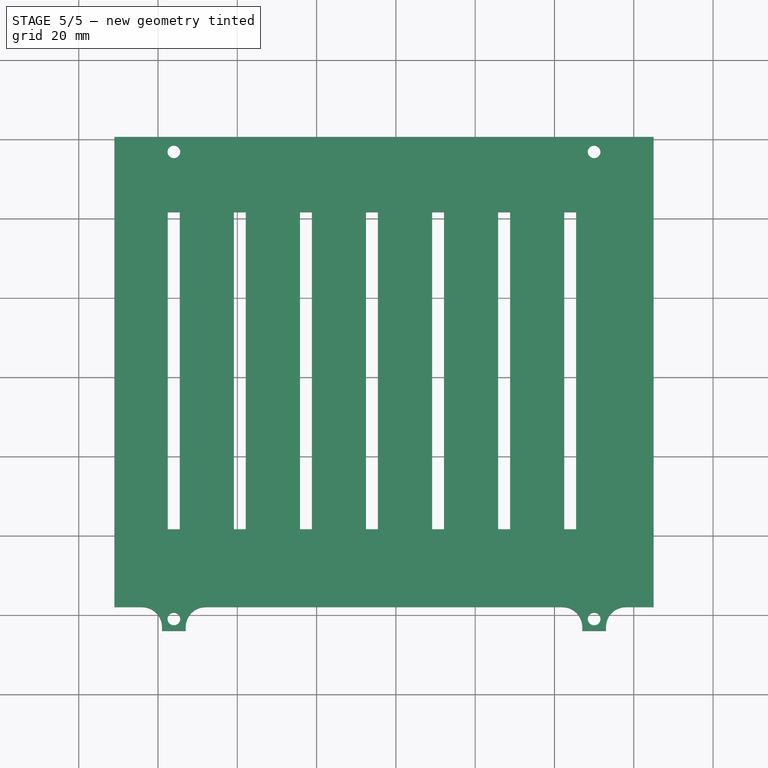
[diagram: stage 5 of 5 — top view after this stage's code; geometry added in this stage tinted green]
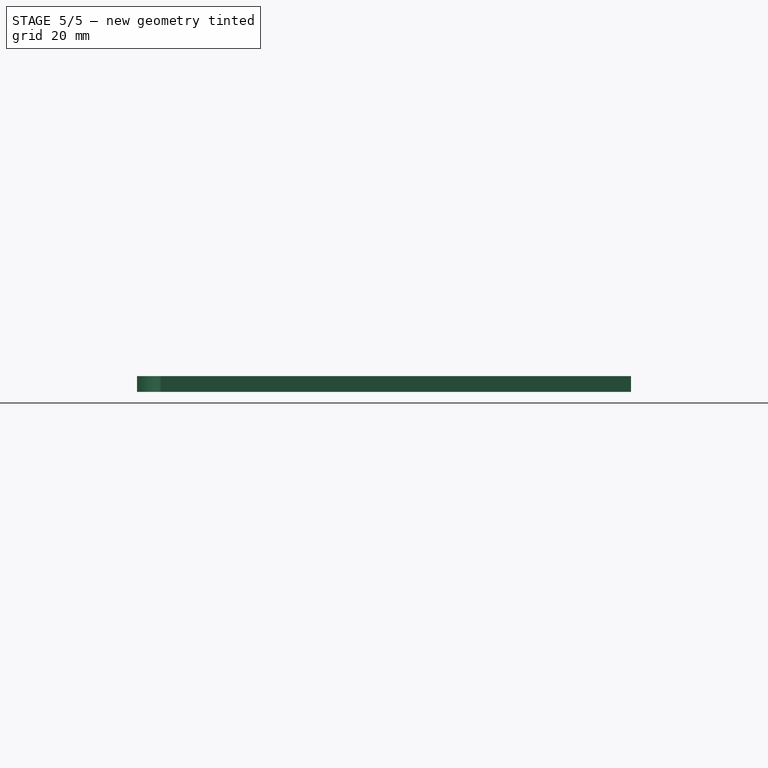
[diagram: stage 5 of 5 — right view after this stage's code; geometry added in this stage tinted green]
FEATURE [PartDesign::LinearPattern] LinearPattern001
  BaseFeature = -> Pocket009
  Direction = -> Sketch020 [H_Axis]
  Length = 100
  Occurrences = 10
  Originals = -> [Pocket009]
  Placement = pos=(0,0,-0.864479) rot=(0,0,1;0rad)
FEATURE [PartDesign::Body] Body  label="Body001"
  Group = -> [ShapeBinder,Sketch,Pad,Sketch001,Pocket,Sketch008,Sketch009,ShapeBinder001,Sketch010,Pad001,Sketch011,Pocket001,Sketch012,Pocket002,Sketch013,Pocket003,Sketch014,Pocket004,Sketch015,Pad002,Chamfer,Sketch016,Pocket005,LinearPattern,Sketch017,Pocket006,Pad003,Draft,Pocket007,Sketch018,Pocket008,Sketch019,Pad004,Chamfer001,Sketch020,Pocket009,LinearPattern001]
  Origin = -> Origin
  Tip = -> LinearPattern001
FEATURE [PartDesign::ShapeBinder] ShapeBinder002
  Support = -> [LinearPattern001]
  TraceSupport = false
FEATURE [Sketcher::SketchObject] Sketch021
  ExternalGeometry = -> [ShapeBinder002]
  FullyConstrained = true
  MapMode = 5
  Placement = pos=(0,0,41.1355) rot=(0,0,1;0rad)
  Support = -> [ShapeBinder002]
  sketch-geometry (16):
    g0: LineSegment StartX=189 StartY=120.6 StartZ=0 EndX=189 EndY=2 EndZ=0
    g1: LineSegment StartX=189 StartY=2 StartZ=0 EndX=201 EndY=2 EndZ=0
    g2: LineSegment StartX=201 StartY=2 StartZ=0 EndX=201 EndY=-4 EndZ=0
    g3: LineSegment StartX=201 StartY=-4 StartZ=0 EndX=207 EndY=-4 EndZ=0
    g4: LineSegment StartX=207 StartY=-4 StartZ=0 EndX=207 EndY=2 EndZ=0
    g5: LineSegment StartX=207 StartY=2 StartZ=0 EndX=307 EndY=2 EndZ=0
    g6: LineSegment StartX=307 StartY=2 StartZ=0 EndX=307 EndY=-4 EndZ=0
    g7: LineSegment StartX=307 StartY=-4 StartZ=0 EndX=313 EndY=-4 EndZ=0
    g8: LineSegment StartX=313 StartY=-4 StartZ=0 EndX=313 EndY=2 EndZ=0
    g9: LineSegment StartX=313 StartY=2 StartZ=0 EndX=325 EndY=2 EndZ=0
    g10: LineSegment StartX=325 StartY=2 StartZ=0 EndX=325 EndY=120.6 EndZ=0
    g11: LineSegment StartX=325 StartY=120.6 StartZ=0 EndX=189 EndY=120.6 EndZ=0
    g12: Circle CenterX=204 CenterY=-1 CenterZ=0 NormalX=0 NormalY=0 NormalZ=1 AngleXU=0 Radius=1.6
    g13: Circle CenterX=310 CenterY=-1 CenterZ=0 NormalX=0 NormalY=0 NormalZ=1 AngleXU=0 Radius=1.6
    g14: Circle CenterX=204 CenterY=116.85 CenterZ=0 NormalX=0 NormalY=0 NormalZ=1 AngleXU=0 Radius=1.6
    g15: Circle CenterX=310 CenterY=116.85 CenterZ=0 NormalX=0 NormalY=0 NormalZ=1 AngleXU=0 Radius=1.6
  constraints (32):
    c: Coincident(g-3,g0)
    c: Coincident(g0,g-8)
    c: Coincident(g0,g1)
    c: Coincident(g1,g-8)
    c: Coincident(g1,g2)
    c: Coincident(g2,g-7)
    c: Coincident(g2,g3)
    c: Coincident(g3,g-6)
    c: Coincident(g3,g4)
    c: Coincident(g4,g-6)
    c: Coincident(g4,g5)
    c: Coincident(g5,g-10)
    c: Coincident(g5,g6)
    c: Coincident(g6,g-10)
    c: Coincident(g6,g7)
    c: Coincident(g7,g-11)
    c: Coincident(g7,g8)
    c: Coincident(g8,g-12)
    c: Coincident(g8,g9)
    c: Coincident(g9,g-13)
    c: Coincident(g9,g10)
    c: Coincident(g10,g-3)
    c: Coincident(g10,g11)
    c: Coincident(g11,g0)
    c: Coincident(g12,g-9)
    c: Coincident(g13,g-16)
    c: Coincident(g14,g-14)
    c: Coincident(g15,g-15)
    c: Radius(g14) = 1.6
    c: Equal(g14,g15)
    c: Equal(g14,g12)
    c: Equal(g14,g13)
FEATURE [PartDesign::Pad] Pad005
  Direction = (1,1,1)
  Length = 4
  Length2 = 100
  Profile = -> Sketch021
  Type = 0
FEATURE [PartDesign::Fillet] Fillet
  Base = -> Pad005 [Edge14,Edge5,Edge17,Edge26]
  BaseFeature = -> Pad005
  Radius = 5
  SupportTransform = false
FEATURE [Sketcher::SketchObject] Sketch022
  FullyConstrained = false
  MapMode = 5
  Placement = pos=(0,0,45.1355) rot=(0,0,1;0rad)
  Support = -> [Fillet]
  sketch-geometry (4):
    g0: LineSegment StartX=202.469 StartY=101.629 StartZ=0 EndX=205.469 EndY=101.629 EndZ=0
    g1: LineSegment StartX=205.469 StartY=101.629 StartZ=0 EndX=205.469 EndY=21.6294 EndZ=0
    g2: LineSegment StartX=205.469 StartY=21.6294 StartZ=0 EndX=202.469 EndY=21.6294 EndZ=0
    g3: LineSegment StartX=202.469 StartY=21.6294 StartZ=0 EndX=202.469 EndY=101.629 EndZ=0
  constraints (10):
    c: Coincident(g0,g1)
    c: Coincident(g1,g2)
    c: Coincident(g2,g3)
    c: Coincident(g3,g0)
    c: Horizontal(g0)
    c: Horizontal(g2)
    c: Vertical(g1)
    c: Vertical(g3)
    c: Distance(g2) = 3
    c: Distance(g3) = 80
FEATURE [PartDesign::Pocket] Pocket010
  BaseFeature = -> Fillet
  Length = 5
  Length2 = 100
  Profile = -> Sketch022
  Type = 1
FEATURE [PartDesign::LinearPattern] LinearPattern002
  BaseFeature = -> Pocket010
  Direction = -> X_Axis836
  Length = 100
  Occurrences = 7
  Originals = -> [Pocket010]
FEATURE [PartDesign::Body] Body001  label="Body002"
  Group = -> [ShapeBinder002,Sketch021,Pad005,Fillet,Sketch022,Pocket010,LinearPattern002]
  Origin = -> Origin836
  Tip = -> LinearPattern002
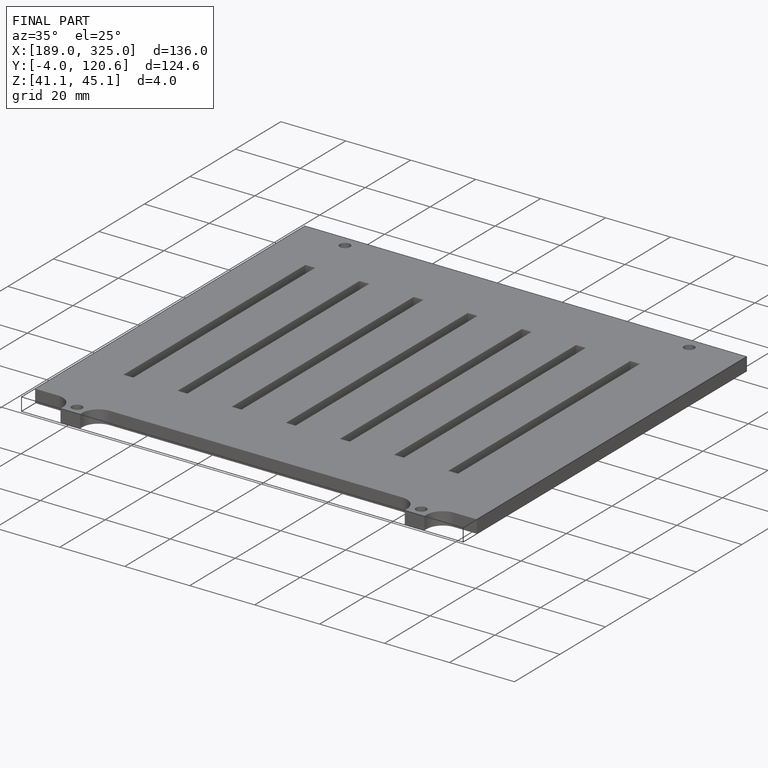
[diagram: finished part — iso view with bounding-box wireframe]
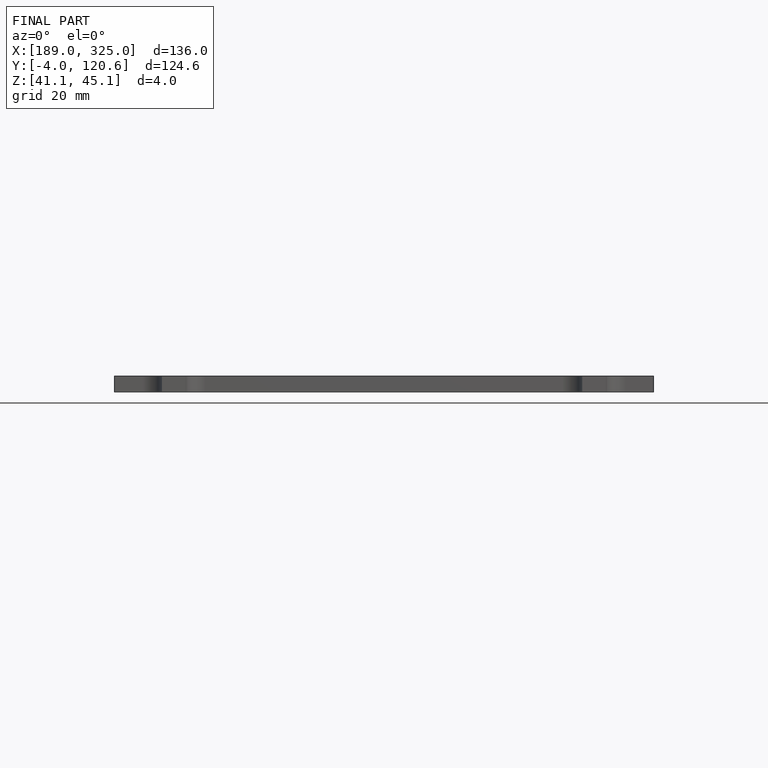
[diagram: finished part — front view with bounding-box wireframe]
